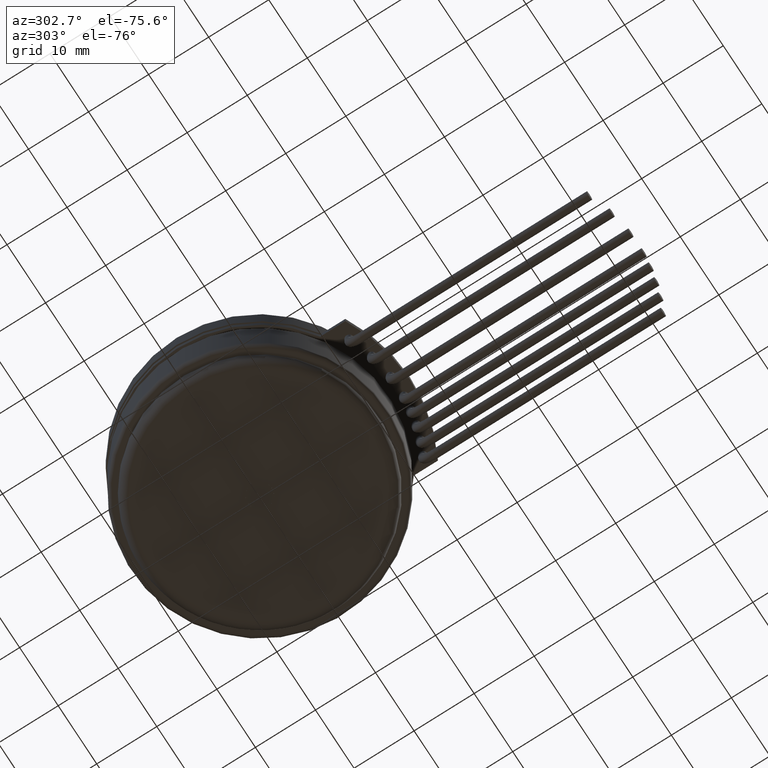
[diagram: clean part render]
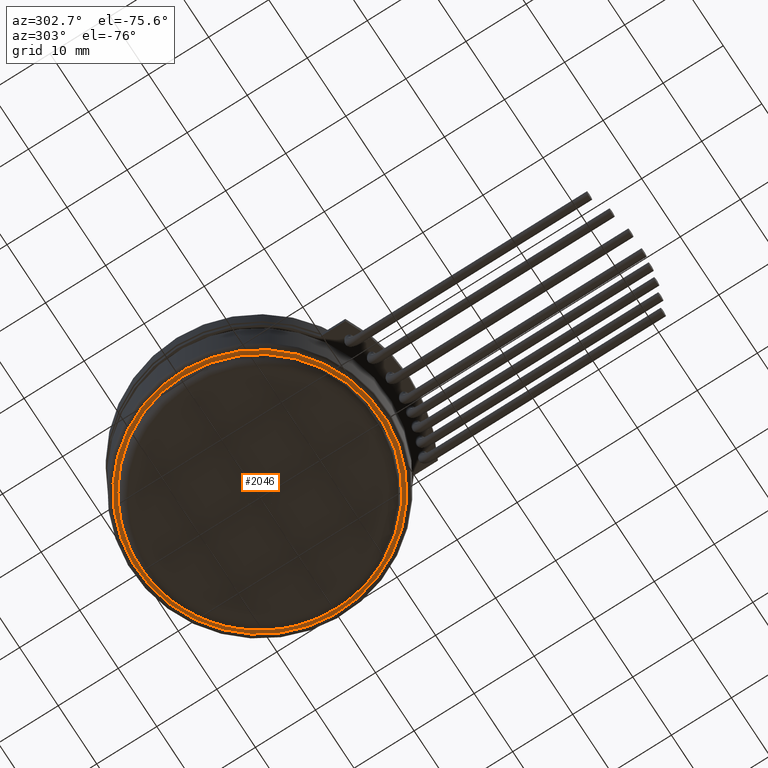
[diagram: same view with one face highlighted and labeled with its STEP entity id]
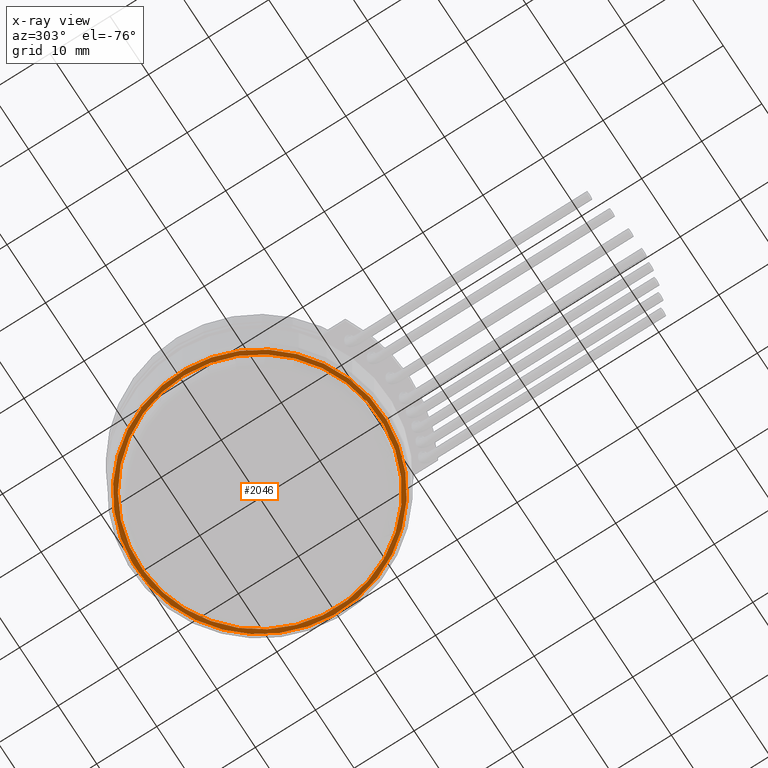
[diagram: x-ray of the same camera — body ghosted, the highlighted face saturated]
A machine part, auxiliary view. The second image highlights one B-rep face of the part: STEP entity #2046.
The next image is the same camera in x-ray: the body ghosted, the highlighted face saturated — about 0% of this face is hidden behind the body in this view.
In plain terms, the highlighted planar face has unit normal (0, -0, -1).
Its self-contained STEP definition (entity closure, byte-faithful):
#1995=CARTESIAN_POINT('',(20.600000000000001,2.522772E-015,0.0));
#1996=VERTEX_POINT('',#1995);
#1997=CARTESIAN_POINT('',(0.0,0.0,0.0));
#1998=DIRECTION('',(0.0,0.0,1.0));
#1999=DIRECTION('',(-1.0,0.0,0.0));
#2000=AXIS2_PLACEMENT_3D('',#1997,#1998,#1999);
#2001=CIRCLE('',#2000,20.600000000000001);
#2002=EDGE_CURVE('',#1996,#1996,#2001,.T.);
#2027=CARTESIAN_POINT('',(0.0,0.0,0.0));
#2028=DIRECTION('',(0.0,0.0,-1.0));
#2029=DIRECTION('',(-1.0,0.0,0.0));
#2030=AXIS2_PLACEMENT_3D('',#2027,#2028,#2029);
#2031=PLANE('',#2030);
#2032=ORIENTED_EDGE('',*,*,#2002,.F.);
#2033=EDGE_LOOP('',(#2032));
#2034=FACE_OUTER_BOUND('',#2033,.T.);
#2035=CARTESIAN_POINT('',(-19.899999999999999,2.437047E-015,0.0));
#2036=VERTEX_POINT('',#2035);
#2037=CARTESIAN_POINT('',(0.0,0.0,0.0));
#2038=DIRECTION('',(0.0,0.0,1.0));
#2039=DIRECTION('',(1.0,0.0,0.0));
#2040=AXIS2_PLACEMENT_3D('',#2037,#2038,#2039);
#2041=CIRCLE('',#2040,19.899999999999999);
#2042=EDGE_CURVE('',#2036,#2036,#2041,.T.);
#2043=ORIENTED_EDGE('',*,*,#2042,.T.);
#2044=EDGE_LOOP('',(#2043));
#2045=FACE_BOUND('',#2044,.T.);
#2046=ADVANCED_FACE('',(#2034,#2045),#2031,.T.);